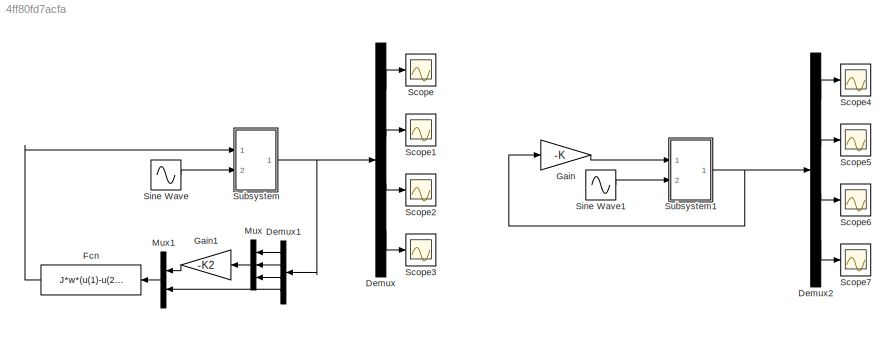
MODEL slx_4ff80fd7acfa
KIND model
CONFIG AbsTol = auto
CONFIG FixedStep = auto
CONFIG MaxStep = auto
CONFIG MinStep = auto
CONFIG RelTol = 1e-3
CONFIG SampleTimeConstraint = Unconstrained
CONFIG Solver = ode45
CONFIG SolverMode = Auto
CONFIG SolverName = ode45
CONFIG StartTime = 0.0
CONFIG StopTime = 20
BLOCK [Demux] Demux
  DisplayOption = bar
  Ports = [1, 4]
BLOCK [Demux] Demux1
  DisplayOption = bar
  Ports = [1, 4]
BLOCK [Demux] Demux2
  DisplayOption = bar
  Ports = [1, 4]
BLOCK [Fcn] Fcn
  Expr = J*w*(u(1)-u(2))/0.1
BLOCK [Gain] Gain
  Gain = -K
  Multiplication = Matrix(K*u)
  OutDataTypeStr = Inherit: Inherit via internal rule
  ParamDataTypeStr = Inherit: Inherit via internal rule
  SaturateOnIntegerOverflow = off
BLOCK [Gain] Gain1
  Gain = -K2
  Multiplication = Matrix(K*u)
  OutDataTypeStr = Inherit: Inherit via internal rule
  ParamDataTypeStr = Inherit: Inherit via internal rule
  SaturateOnIntegerOverflow = off
BLOCK [Mux] Mux
  DisplayOption = bar
  Inputs = 3
  Ports = [3, 1]
BLOCK [Mux] Mux1
  DisplayOption = bar
  Inputs = 2
  Ports = [2, 1]
BLOCK [Scope] Scope
  Floating = off
  NumInputPorts = 1
  Ports = [1]
  TimeRange = 400.0000000000001
  YMax = 0.1015879396984925
  YMin = 0.05358793969849247
BLOCK [Scope] Scope1
  Floating = off
  NumInputPorts = 1
  Ports = [1]
  SaveName = ScopeData1
BLOCK [Scope] Scope2
  Floating = off
  NumInputPorts = 1
  Ports = [1]
  SaveName = ScopeData2
BLOCK [Scope] Scope3
  Floating = off
  NumInputPorts = 1
  Ports = [1]
  SaveName = ScopeData3
BLOCK [Scope] Scope4
  Floating = off
  NumInputPorts = 1
  Ports = [1]
  SaveName = ScopeData4
  TimeRange = 400.0000000000001
  YMax = 0.1015879396984925
  YMin = 0.05358793969849247
BLOCK [Scope] Scope5
  Floating = off
  NumInputPorts = 1
  Ports = [1]
  SaveName = ScopeData5
BLOCK [Scope] Scope6
  Floating = off
  NumInputPorts = 1
  Ports = [1]
  SaveName = ScopeData6
BLOCK [Scope] Scope7
  Floating = off
  NumInputPorts = 1
  Ports = [1]
  SaveName = ScopeData7
BLOCK [Sin] Sine Wave
  Amplitude = 0
  Frequency = 0.1
  Ports = [0, 1]
  SampleTime = 0
BLOCK [Sin] Sine Wave1
  Amplitude = 0
  Frequency = 0.1
  Ports = [0, 1]
  SampleTime = 0
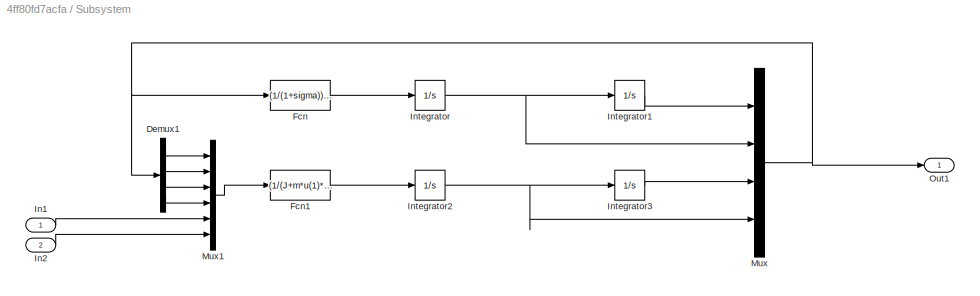
BLOCK [SubSystem] Subsystem
  Ports = [2, 1]
  RequestExecContextInheritance = off
BLOCK [Demux] Subsystem/Demux1
  DisplayOption = bar
  Ports = [1, 4]
BLOCK [Fcn] Subsystem/Fcn
  Expr = (1/(1+sigma))*u(1)*u(4)*u(4) - (g/(1+sigma))*sin(u(3))
BLOCK [Fcn] Subsystem/Fcn1
  Expr = (1/(J+m*u(1)*u(1)))*u(5) - ((m*g)/(J+m*u(1)*u(1)))*u(1)*cos(u(3)) - ((2*m)/(J+m*u(1)*u(1)))*u(1)*u(2)*u(4)+u(6)
BLOCK [Inport] Subsystem/In1
  IconDisplay = Port number
BLOCK [Inport] Subsystem/In2
  IconDisplay = Port number
  Port = 2
BLOCK [Integrator] Subsystem/Integrator
  Ports = [1, 1]
BLOCK [Integrator] Subsystem/Integrator1
  InitialCondition = 0.1
  Ports = [1, 1]
BLOCK [Integrator] Subsystem/Integrator2
  Ports = [1, 1]
BLOCK [Integrator] Subsystem/Integrator3
  InitialCondition = 0.1
  Ports = [1, 1]
BLOCK [Mux] Subsystem/Mux
  DisplayOption = bar
  Ports = [4, 1]
BLOCK [Mux] Subsystem/Mux1
  DisplayOption = bar
  Inputs = 6
  Ports = [6, 1]
BLOCK [Outport] Subsystem/Out1
  IconDisplay = Port number
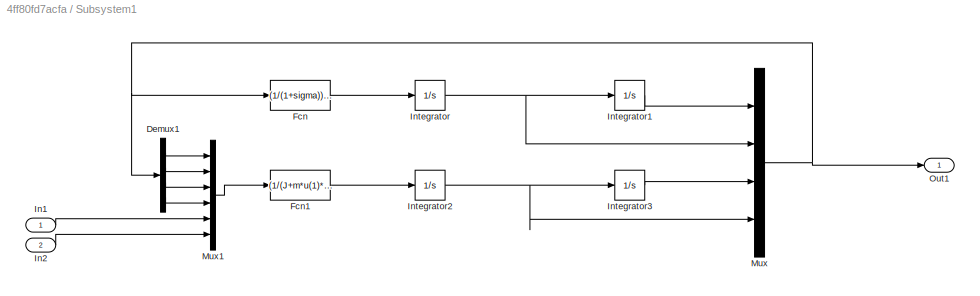
BLOCK [SubSystem] Subsystem1
  Ports = [2, 1]
  RequestExecContextInheritance = off
BLOCK [Demux] Subsystem1/Demux1
  DisplayOption = bar
  Ports = [1, 4]
BLOCK [Fcn] Subsystem1/Fcn
  Expr = (1/(1+sigma))*u(1)*u(4)*u(4) - (g/(1+sigma))*sin(u(3))
BLOCK [Fcn] Subsystem1/Fcn1
  Expr = (1/(J+m*u(1)*u(1)))*u(5) - ((m*g)/(J+m*u(1)*u(1)))*u(1)*cos(u(3)) - ((2*m)/(J+m*u(1)*u(1)))*u(1)*u(2)*u(4)+u(6)
BLOCK [Inport] Subsystem1/In1
  IconDisplay = Port number
BLOCK [Inport] Subsystem1/In2
  IconDisplay = Port number
  Port = 2
BLOCK [Integrator] Subsystem1/Integrator
  Ports = [1, 1]
BLOCK [Integrator] Subsystem1/Integrator1
  InitialCondition = 0.1
  Ports = [1, 1]
BLOCK [Integrator] Subsystem1/Integrator2
  Ports = [1, 1]
BLOCK [Integrator] Subsystem1/Integrator3
  InitialCondition = 0.1
  Ports = [1, 1]
BLOCK [Mux] Subsystem1/Mux
  DisplayOption = bar
  Ports = [4, 1]
BLOCK [Mux] Subsystem1/Mux1
  DisplayOption = bar
  Inputs = 6
  Ports = [6, 1]
BLOCK [Outport] Subsystem1/Out1
  IconDisplay = Port number
LINE Demux1:1 -> Mux:1
LINE Demux1:2 -> Mux:2
LINE Demux1:3 -> Mux:3
LINE Demux1:4 -> Mux1:2
LINE Demux2:1 -> Scope4:1
LINE Demux2:2 -> Scope5:1
LINE Demux2:3 -> Scope6:1
LINE Demux2:4 -> Scope7:1
LINE Demux:1 -> Scope:1
LINE Demux:2 -> Scope1:1
LINE Demux:3 -> Scope2:1
LINE Demux:4 -> Scope3:1
LINE Fcn:1 -> Subsystem:1
LINE Gain1:1 -> Mux1:1
LINE Gain:1 -> Subsystem1:1
LINE Mux1:1 -> Fcn:1
LINE Mux:1 -> Gain1:1
LINE Sine Wave1:1 -> Subsystem1:2
LINE Sine Wave:1 -> Subsystem:2
LINE Subsystem/Demux1:1 -> Subsystem/Mux1:1
LINE Subsystem/Demux1:2 -> Subsystem/Mux1:2
LINE Subsystem/Demux1:3 -> Subsystem/Mux1:3
LINE Subsystem/Demux1:4 -> Subsystem/Mux1:4
LINE Subsystem/Fcn1:1 -> Subsystem/Integrator2:1
LINE Subsystem/Fcn:1 -> Subsystem/Integrator:1
LINE Subsystem/In1:1 -> Subsystem/Mux1:5
LINE Subsystem/In2:1 -> Subsystem/Mux1:6
LINE Subsystem/Integrator1:1 -> Subsystem/Mux:1
NET Subsystem/Integrator2:1 -> Subsystem/Integrator3:1, Subsystem/Mux:4
LINE Subsystem/Integrator3:1 -> Subsystem/Mux:3
NET Subsystem/Integrator:1 -> Subsystem/Integrator1:1, Subsystem/Mux:2
LINE Subsystem/Mux1:1 -> Subsystem/Fcn1:1
NET Subsystem/Mux:1 -> Subsystem/Demux1:1, Subsystem/Fcn:1, Subsystem/Out1:1
LINE Subsystem1/Demux1:1 -> Subsystem1/Mux1:1
LINE Subsystem1/Demux1:2 -> Subsystem1/Mux1:2
LINE Subsystem1/Demux1:3 -> Subsystem1/Mux1:3
LINE Subsystem1/Demux1:4 -> Subsystem1/Mux1:4
LINE Subsystem1/Fcn1:1 -> Subsystem1/Integrator2:1
LINE Subsystem1/Fcn:1 -> Subsystem1/Integrator:1
LINE Subsystem1/In1:1 -> Subsystem1/Mux1:5
LINE Subsystem1/In2:1 -> Subsystem1/Mux1:6
LINE Subsystem1/Integrator1:1 -> Subsystem1/Mux:1
NET Subsystem1/Integrator2:1 -> Subsystem1/Integrator3:1, Subsystem1/Mux:4
LINE Subsystem1/Integrator3:1 -> Subsystem1/Mux:3
NET Subsystem1/Integrator:1 -> Subsystem1/Integrator1:1, Subsystem1/Mux:2
LINE Subsystem1/Mux1:1 -> Subsystem1/Fcn1:1
NET Subsystem1/Mux:1 -> Subsystem1/Demux1:1, Subsystem1/Fcn:1, Subsystem1/Out1:1
NET Subsystem1:1 -> Demux2:1, Gain:1
NET Subsystem:1 -> Demux1:1, Demux:1
note: NET lines group one-source signal fan-out (src -> all destinations, sorted); 1:1 wires keep LINE
